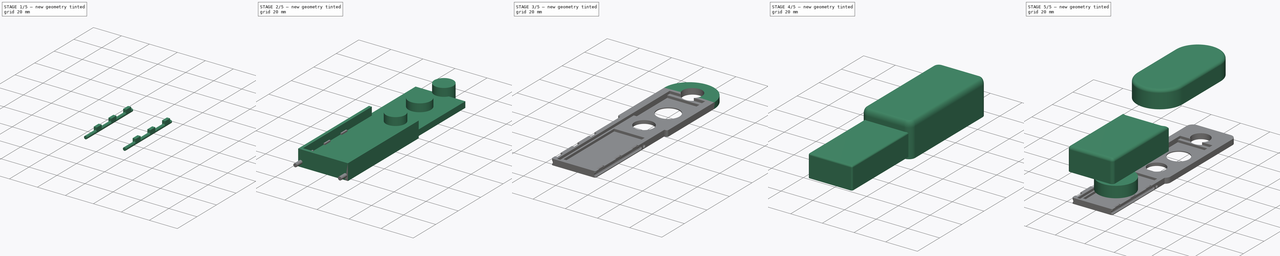
[diagram: build sequence overview — one tinted view per stage of 5, left to right]
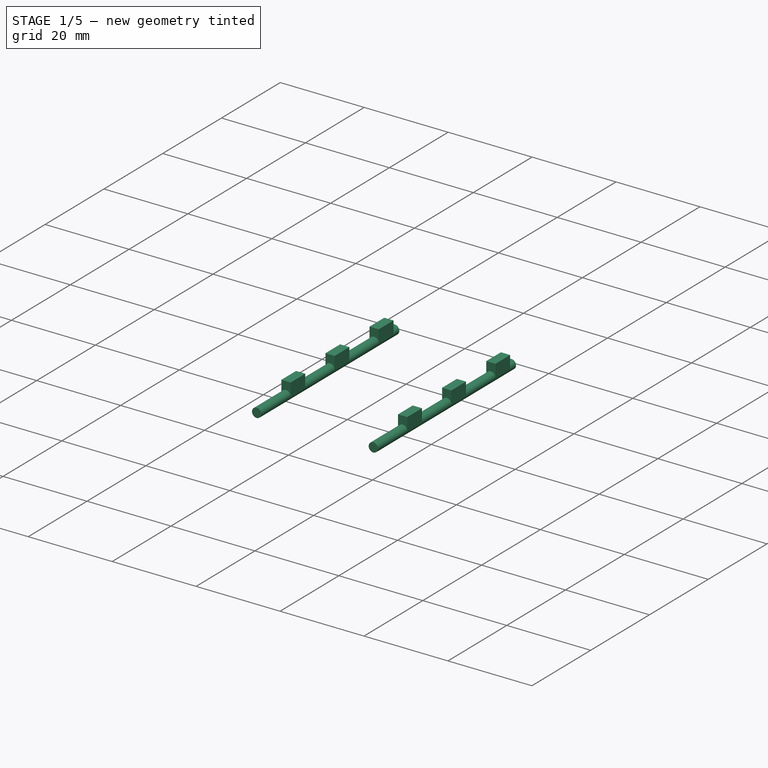
[diagram: stage 1 of 5 — iso view after this stage's code; geometry added in this stage tinted green]
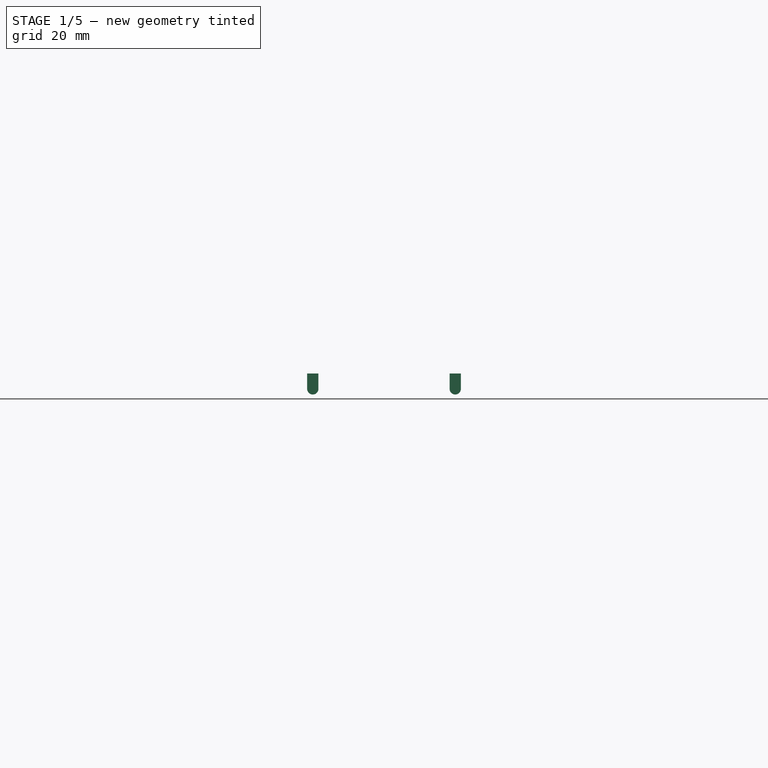
[diagram: stage 1 of 5 — front view after this stage's code; geometry added in this stage tinted green]
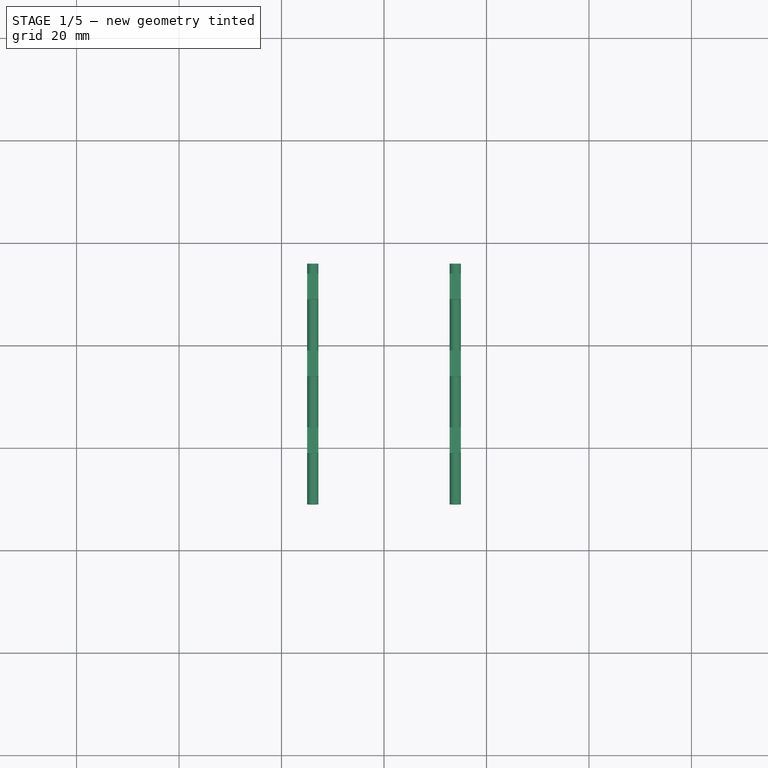
[diagram: stage 1 of 5 — top view after this stage's code; geometry added in this stage tinted green]
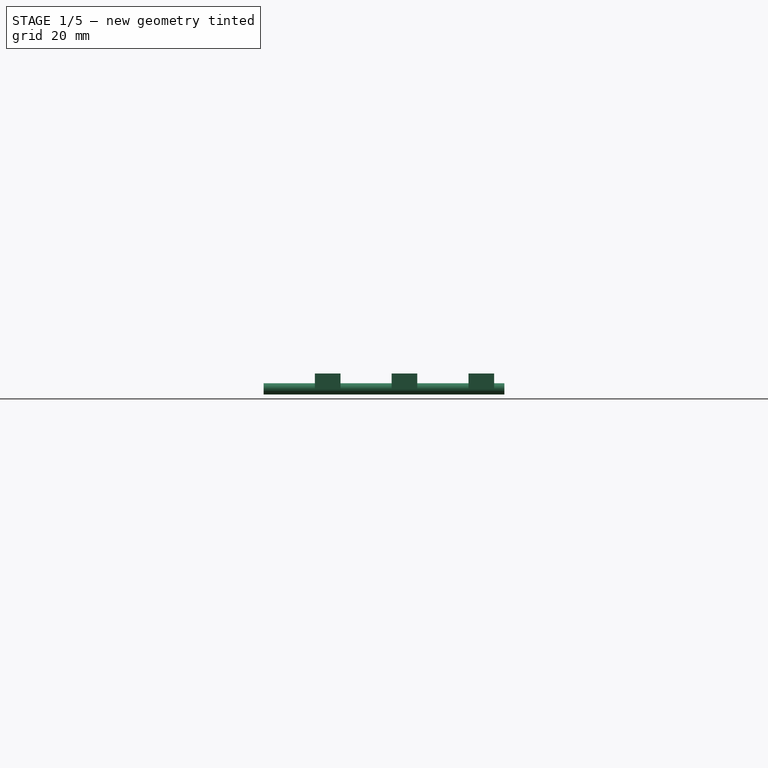
[diagram: stage 1 of 5 — right view after this stage's code; geometry added in this stage tinted green]
FCSTD DOCUMENT  (FreeCAD 0.18R4 (GitTag))
Label: RHS_3_small
License: All rights reserved
LicenseURL: http://en.wikipedia.org/wiki/All_rights_reserved
objects: Part::FeaturePython×11, Part::Box×10, Part::Cut×10, Part::Cylinder×7, Part::MultiFuse×7, Part::Fillet×7, Sketcher::SketchObject×2, Part::Sphere×2, Spreadsheet::Sheet×1, Part::Feature×1, Part::Extrusion×1, Part::Chamfer×1, PartDesign::Pad×1, PartDesign::Body×1
note: 62 computed .brp shape members not serialized (recipe doc carries the construction recipe); baked Part::Feature solids carry a one-line shape summary decoded from their .brp

FEATURE [Part::Box] Box001  label="DeckelBox"
  AttacherType = Attacher::AttachEngine3D
  Height = 15.7
  Length = 31
  Placement = pos=(-15.5,-86,-3.7) rot=(0,0,1;0rad)
  Width = 63
  expr: Placement.Base.z = -GrundPlatteRBase.Height
  expr: Height = GrundPlatteRBase.Height + 12mm
  expr: Placement.Base.x = -Length / 2
  expr: Length = Parameter.GriffR_Width
FEATURE [Part::Box] Box002  label="DeckeBoxCut"
  AttacherType = Attacher::AttachEngine3D
  Height = 14.1
  Length = 27.8
  Placement = pos=(-13.9,-84.4,-3.7) rot=(0,0,1;0rad)
  Width = 63
  expr: Placement.Base.z = DeckelBox.Placement.Base.z
  expr: Height = DeckelBox.Height - Parameter.Wall_Width
  expr: Placement.Base.y = DeckelBox.Placement.Base.y + Parameter.Wall_Width
  expr: Placement.Base.x = -Length / 2
  expr: Width = DeckelBox.Width
  expr: Length = DeckelBox.Length - Parameter.Wall_Width - Parameter.Wall_Width
FEATURE [Part::Box] Box003  label="GrundPlatteRBase"
  AttacherType = Attacher::AttachEngine3D
  Height = 3.7
  Length = 31
  Placement = pos=(-15.5,-86,-3.7) rot=(0,0,1;0rad)
  Width = 104.5
  expr: Placement.Base.x = -Length / 2
  expr: Length = Parameter.GriffR_Width
  expr: Height = Parameter.Pcb_Height + Parameter.Part_Height + 0.6mm
  expr: Placement.Base.z = -Height
FEATURE [Part::Sphere] Sphere  label="Fed0"
  Angle1 = -90
  Angle2 = 90
  Angle3 = 360
  AttacherType = Attacher::AttachEngine3D
  Placement = pos=(-13.9,-41,-2.1) rot=(0,0,1;0rad)
  Radius = 1
  expr: Placement.Base.z = DeckelBox.Placement.Base.z + Radius + 0.6mm
  expr: Placement.Base.y = -Parameter.GriffR_Height / 2 - 7mm
  expr: Placement.Base.x = DeckelBox.Placement.Base.x + Parameter.Wall_Width
FEATURE [Part::FeaturePython] Array002  label="FedAll"  # Draft array (typed FeaturePython)
  Angle = 360
  ArrayType = 0
  Axis = (0,0,1)
  Base = -> Sphere
  Center = (0,0,0)
  Fuse = false
  IntervalAxis = (0,0,0)
  IntervalX = (27.8,0,0)
  IntervalY = (0,-15,0)
  IntervalZ = (0,0,1)
  NumberPolar = 1
  NumberX = 2
  NumberY = 3
  NumberZ = 1
  expr: IntervalX.x = DeckeBoxCut.Length
FEATURE [Part::Sphere] Sphere001  label="Nut0"
  Angle1 = -90
  Angle2 = 90
  Angle3 = 360
  AttacherType = Attacher::AttachEngine3D
  Placement = pos=(-13.9,-41,-2.1) rot=(0,0,1;0rad)
  Radius = 1.1
  expr: Placement.Base.z = Fed0.Placement.Base.z
  expr: Placement.Base.y = Fed0.Placement.Base.y
  expr: Placement.Base.x = Fed0.Placement.Base.x
  expr: Radius = Fed0.Radius + 0.1mm
FEATURE [Part::FeaturePython] Array003  label="Nut01"  # Draft array (typed FeaturePython)
  Angle = 360
  ArrayType = 0
  Axis = (0,0,1)
  Base = -> Sphere001
  Center = (0,0,0)
  Fuse = false
  IntervalAxis = (0,0,0)
  IntervalX = (27.8,0,0)
  IntervalY = (0,-3,0)
  IntervalZ = (0,0,1)
  NumberPolar = 1
  NumberX = 2
  NumberY = 2
  NumberZ = 1
  expr: IntervalX.x = FedAll.IntervalX.x
FEATURE [Part::Cylinder] Cylinder006  label="Nut1"
  Angle = 360
  AttacherType = Attacher::AttachEngine3D
  Height = 47
  Placement = pos=(-13.9,-44,-2.1) rot=(1,0,0;1.5708rad)
  Radius = 1.1
  expr: Placement.Base.z = Nut0.Placement.Base.z
  expr: Placement.Base.y = Nut0.Placement.Base.y + Nut01.IntervalY.y
  expr: Placement.Base.x = Nut0.Placement.Base.x
  expr: Radius = Nut0.Radius
FEATURE [Part::FeaturePython] Array004  # Draft array (typed FeaturePython)
  Angle = 360
  ArrayType = 0
  Axis = (0,0,1)
  Base = -> Cylinder006
  Center = (0,0,0)
  Fuse = false
  IntervalAxis = (0,0,0)
  IntervalX = (27.8,0,0)
  IntervalY = (0,1,0)
  IntervalZ = (0,0,1)
  NumberPolar = 1
  NumberX = 2
  NumberY = 1
  NumberZ = 1
  expr: IntervalX.x = FedAll.IntervalX.x
FEATURE [Part::Box] Box007  label="NutIn"
  AttacherType = Attacher::AttachEngine3D
  Height = 3
  Length = 2.2
  Placement = pos=(-15,-51,-2.1) rot=(0,0,1;0rad)
  Width = 5
  expr: Placement.Base.z = Nut0.Placement.Base.z
  expr: Placement.Base.y = Nut0.Placement.Base.y - Width - 5mm
  expr: Placement.Base.x = Nut0.Placement.Base.x - Nut0.Radius
  expr: Length = Nut0.Radius * 2
FEATURE [Part::FeaturePython] Array005  # Draft array (typed FeaturePython)
  Angle = 360
  ArrayType = 0
  Axis = (0,0,1)
  Base = -> Box007
  Center = (0,0,0)
  Fuse = false
  IntervalAxis = (0,0,0)
  IntervalX = (27.8,0,0)
  IntervalY = (0,-15,0)
  IntervalZ = (0,0,1)
  NumberPolar = 1
  NumberX = 2
  NumberY = 3
  NumberZ = 1
  expr: IntervalY.y = FedAll.IntervalY.y
  expr: IntervalX.x = FedAll.IntervalX.x
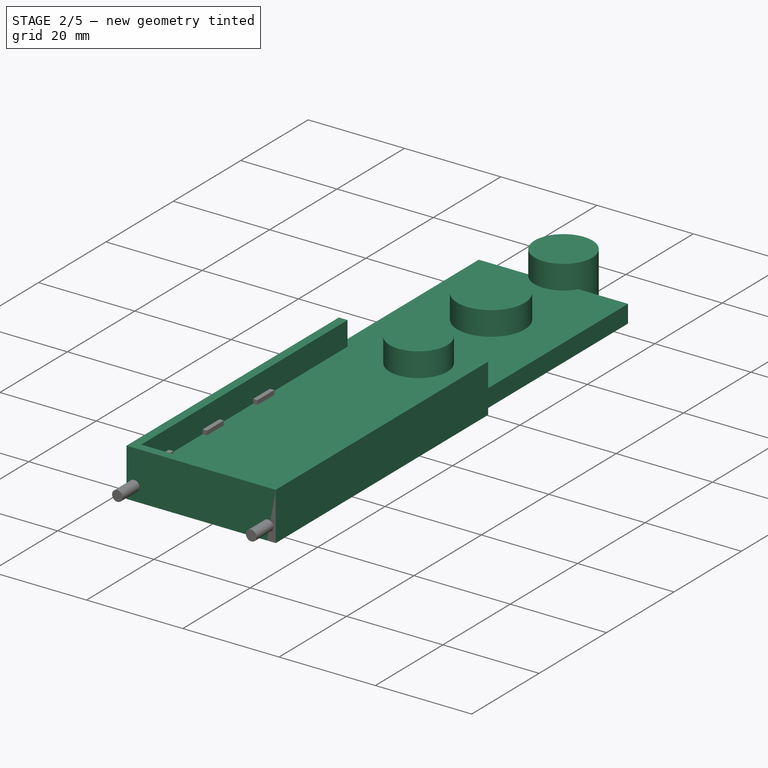
[diagram: stage 2 of 5 — iso view after this stage's code; geometry added in this stage tinted green]
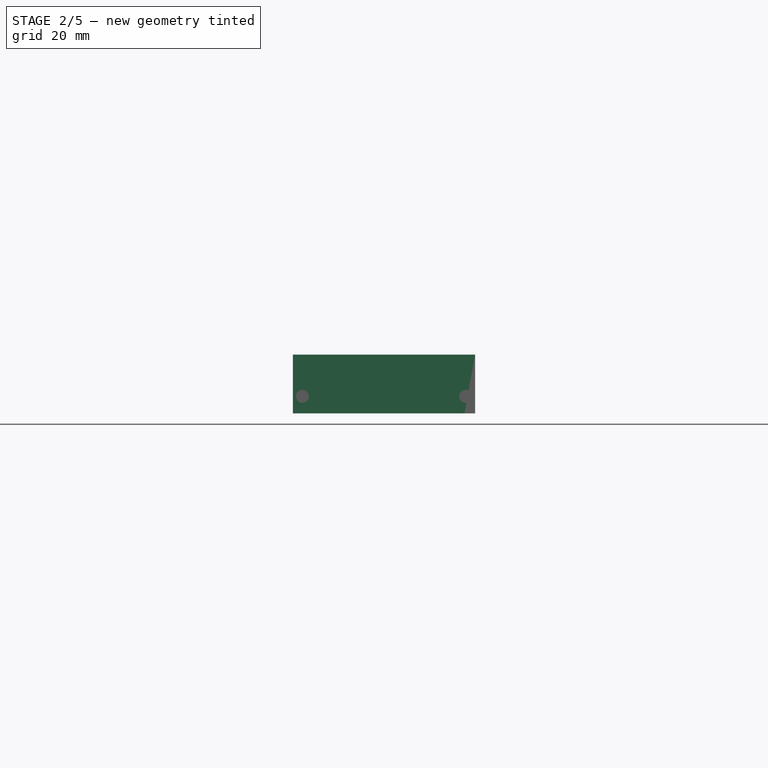
[diagram: stage 2 of 5 — front view after this stage's code; geometry added in this stage tinted green]
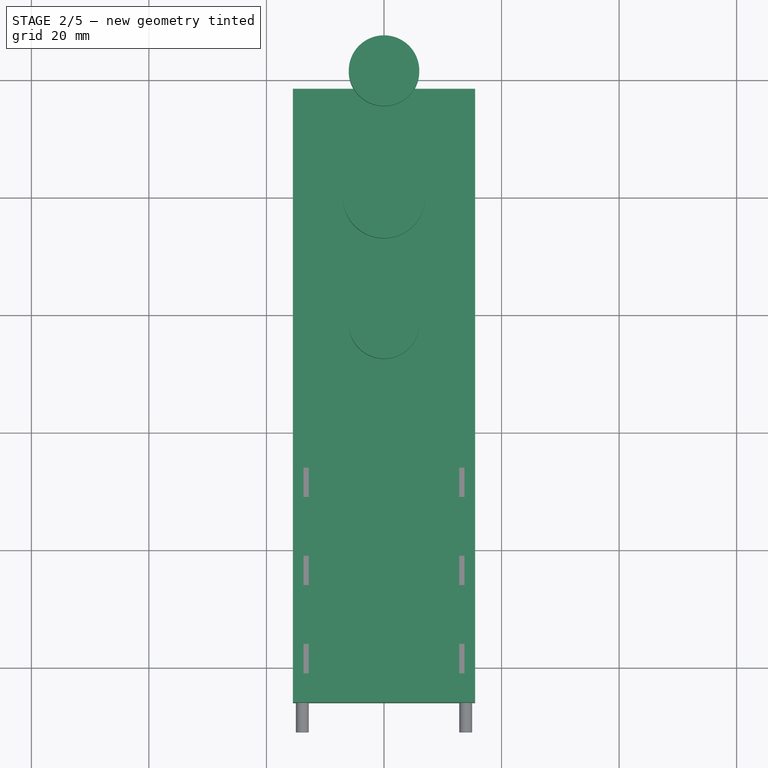
[diagram: stage 2 of 5 — top view after this stage's code; geometry added in this stage tinted green]
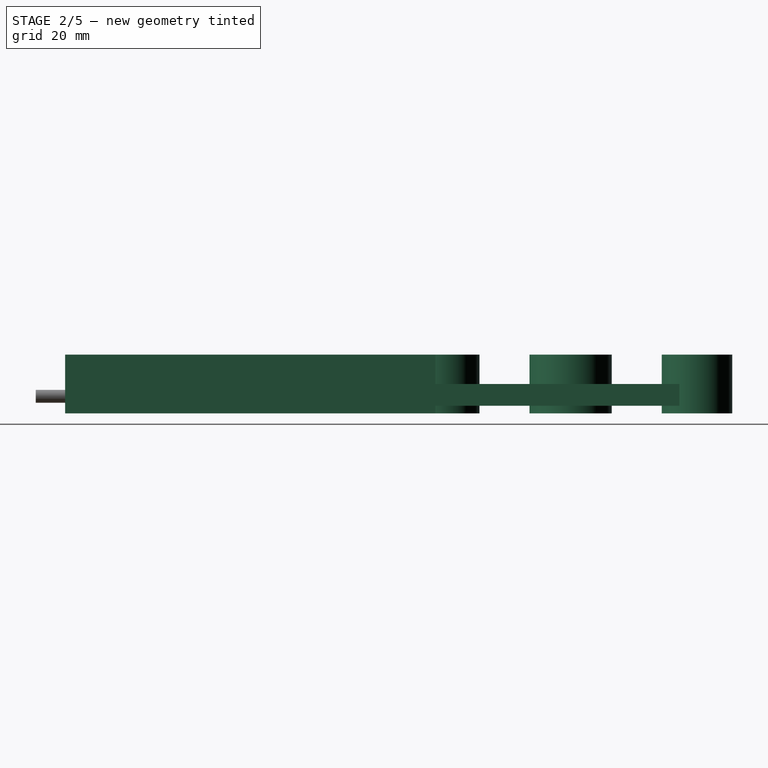
[diagram: stage 2 of 5 — right view after this stage's code; geometry added in this stage tinted green]
FEATURE [Part::Fillet] Fillet003
  Base = -> Box003
  Edges = 2 edges r=2: [Edge1,Edge5]
FEATURE [Part::Cylinder] Cylinder004  label="LochU"
  Angle = 360
  AttacherType = Attacher::AttachEngine3D
  Height = 10
  Placement = pos=(0,-21.5,-5) rot=(0,0,1;0rad)
  Radius = 6
  expr: Placement.Base.y = -21.5
  expr: Placement.Base.z = -5mm
FEATURE [Part::FeaturePython] Array  label="LochUO"  # Draft array (typed FeaturePython)
  Angle = 360
  ArrayType = 0
  Axis = (0,0,1)
  Base = -> Cylinder004
  Center = (0,0,0)
  Fuse = false
  IntervalAxis = (0,0,0)
  IntervalX = (1,0,0)
  IntervalY = (0,43,0)
  IntervalZ = (0,0,1)
  NumberPolar = 1
  NumberX = 1
  NumberY = 2
  NumberZ = 1
  expr: IntervalY.y = -LochU.Placement.Base.y * 2
FEATURE [Part::Cylinder] Cylinder005  label="LochM"
  Angle = 360
  AttacherType = Attacher::AttachEngine3D
  Height = 10
  Placement = pos=(0,0,-5) rot=(0,0,1;0rad)
  Radius = 7
  expr: Placement.Base.z = LochU.Placement.Base.z
FEATURE [Part::MultiFuse] Fusion002  label="LochAll"
  Shapes = -> [Array,Cylinder005]
FEATURE [Part::Box] Box004  label="PcbCut"
  AttacherType = Attacher::AttachEngine3D
  Height = 1.6
  Length = 22
  Placement = pos=(-11,-83,-1.6) rot=(0,0,1;0rad)
  Width = 100
  expr: Placement.Base.x = -Length / 2
  expr: Placement.Base.z = -Height
  expr: Height = Parameter.Pcb_Height
FEATURE [Sketcher::SketchObject] Sketch
  Placement = pos=(0,0,-1.6) rot=(0,0,1;0rad)
  expr: Placement.Base.z = -Parameter.Pcb_Height
  sketch-geometry (8):
    g0: LineSegment StartX=-11 StartY=-14.885 StartZ=0 EndX=11 EndY=-14.885 EndZ=0
    g1: LineSegment StartX=11 StartY=-14.885 StartZ=0 EndX=11 EndY=14.7566 EndZ=0
    g2: LineSegment StartX=11 StartY=14.7566 StartZ=0 EndX=-11 EndY=14.7566 EndZ=0
    g3: LineSegment StartX=-11 StartY=14.7566 StartZ=0 EndX=-11 EndY=-14.885 EndZ=0
    g4: LineSegment StartX=-9.97808 StartY=-78.7447 StartZ=0 EndX=10.1094 EndY=-78.7447 EndZ=0
    g5: LineSegment StartX=10.1094 StartY=-78.7447 StartZ=0 EndX=10.1094 EndY=-33.8126 EndZ=0
    g6: LineSegment StartX=10.1094 StartY=-33.8126 StartZ=0 EndX=-9.97808 EndY=-33.8126 EndZ=0
    g7: LineSegment StartX=-9.97808 StartY=-33.8126 StartZ=0 EndX=-9.97808 EndY=-78.7447 EndZ=0
  constraints (18):
    c: Coincident(g0,g1)
    c: Coincident(g1,g2)
    c: Coincident(g2,g3)
    c: Coincident(g3,g0)
    c: Horizontal(g0)
    c: Horizontal(g2)
    c: Vertical(g1)
    c: Vertical(g3)
    c: Coincident(g4,g5)
    c: Coincident(g5,g6)
    c: Coincident(g6,g7)
    c: Coincident(g7,g4)
    c: Horizontal(g4)
    c: Horizontal(g6)
    c: Vertical(g5)
    c: Vertical(g7)
    c: Distance(g-1,g3) = 11
    c: Distance(g-1,g1) = 11
FEATURE [Part::Extrusion] Extrude  label="PartsSpace"
  Base = -> Sketch
  Dir = (0,0,1)
  DirMode = 2
  FaceMakerClass = Part::FaceMakerBullseye
  LengthFwd = 1.5
  LengthRev = 0
  Placement = pos=(0,0,-1.5) rot=(0,0,1;0rad)
  Solid = true
  Symmetric = false
  expr: Placement.Base.z = -LengthFwd
  expr: LengthFwd = Parameter.Part_Height
FEATURE [Part::Box] Box005  label="DRCut"
  AttacherType = Attacher::AttachEngine3D
  Height = 10
  Length = 1.8
  Placement = pos=(-15.5,-86,-5) rot=(0,0,1;0rad)
  Width = 63
  expr: Placement.Base.z = -5mm
  expr: Placement.Base.y = DeckelBox.Placement.Base.y
  expr: Placement.Base.x = DeckelBox.Placement.Base.x
  expr: Width = DeckelBox.Width
  expr: Length = Parameter.Wall_Width + 0.2mm
FEATURE [Part::FeaturePython] Array001  # Draft array (typed FeaturePython)
  Angle = 360
  ArrayType = 0
  Axis = (0,0,1)
  Base = -> Box005
  Center = (0,0,0)
  Fuse = false
  IntervalAxis = (0,0,0)
  IntervalX = (29.2,0,0)
  IntervalY = (0,1,0)
  IntervalZ = (0,0,1)
  NumberPolar = 1
  NumberX = 2
  NumberY = 1
  NumberZ = 1
  expr: IntervalX.x = DeckelBox.Length - DRCut.Length
FEATURE [Part::Box] Box006  label="DRCut2"
  AttacherType = Attacher::AttachEngine3D
  Height = 10
  Length = 31
  Placement = pos=(-15.5,-86,-5) rot=(0,0,1;0rad)
  Width = 1.8
  expr: Placement.Base.z = DRCut.Placement.Base.z
  expr: Placement.Base.y = DeckelBox.Placement.Base.y
  expr: Placement.Base.x = DeckelBox.Placement.Base.x
  expr: Width = DRCut.Length
  expr: Length = DeckelBox.Length
FEATURE [Part::MultiFuse] Fusion003  label="DRCutAll"
  Shapes = -> [Array001,Box006]
FEATURE [Part::MultiFuse] Fusion005  label="NutAll"
  Shapes = -> [Array003,Array004,Array005]
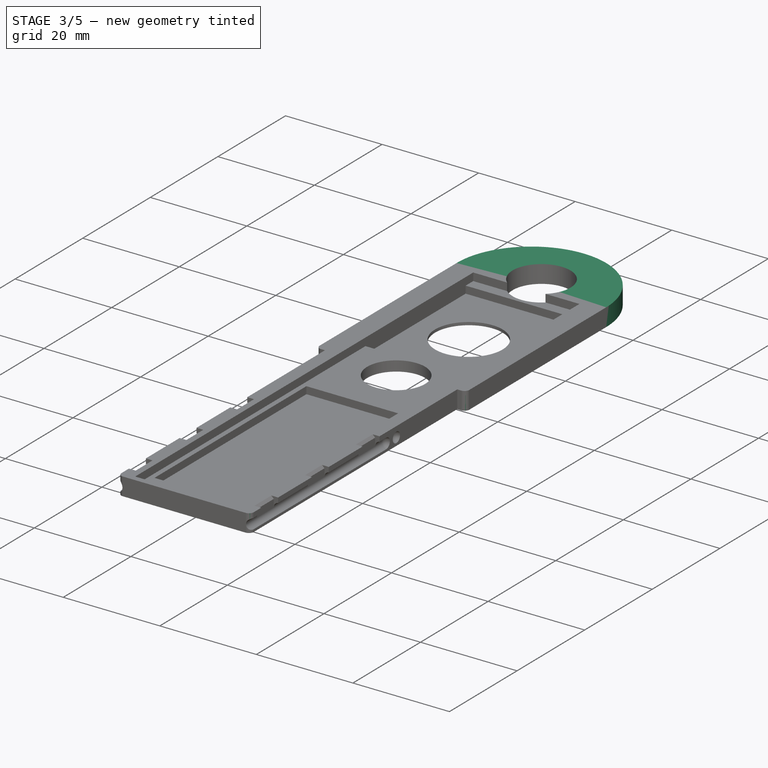
[diagram: stage 3 of 5 — iso view after this stage's code; geometry added in this stage tinted green]
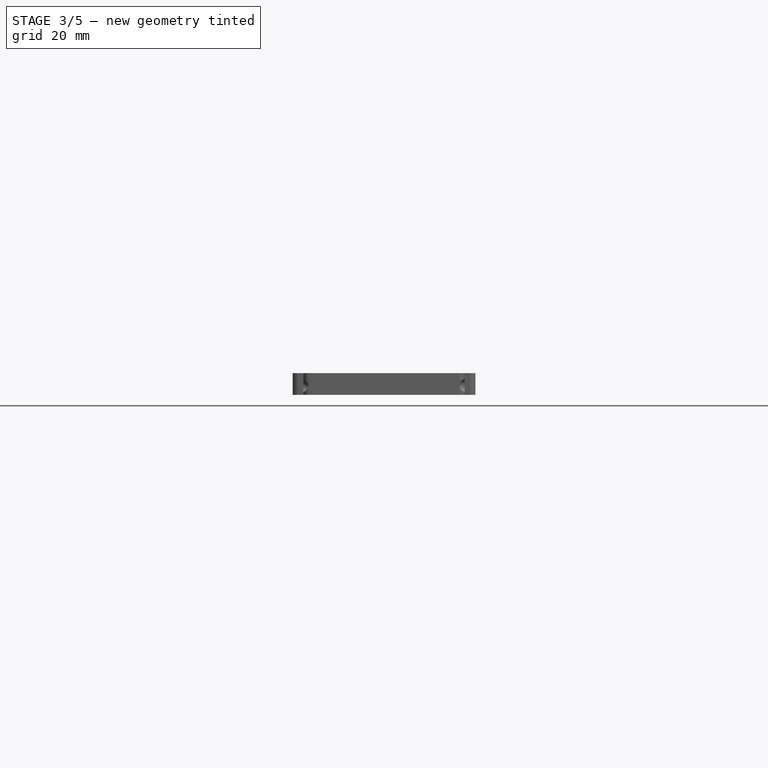
[diagram: stage 3 of 5 — front view after this stage's code; geometry added in this stage tinted green]
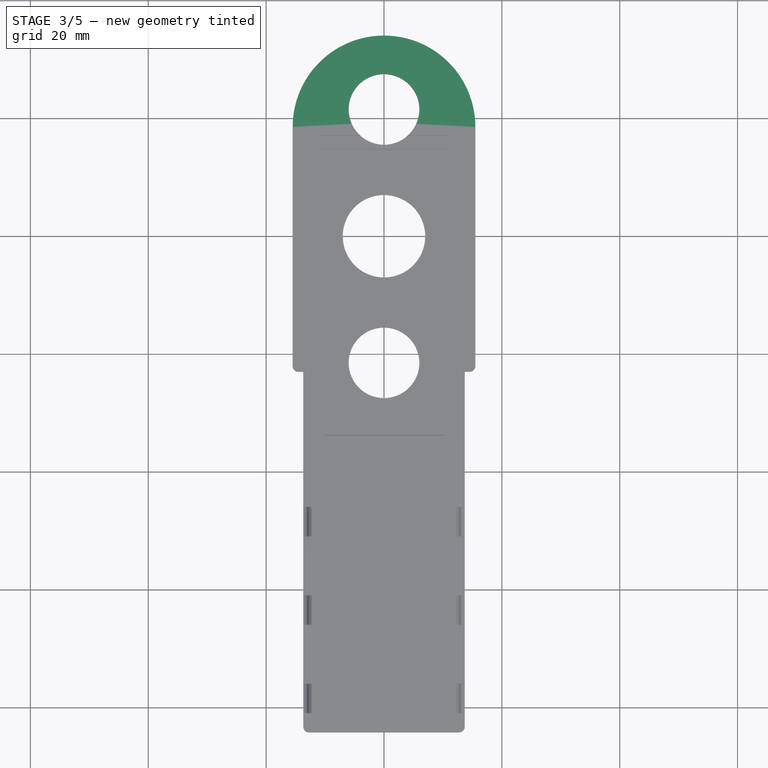
[diagram: stage 3 of 5 — top view after this stage's code; geometry added in this stage tinted green]
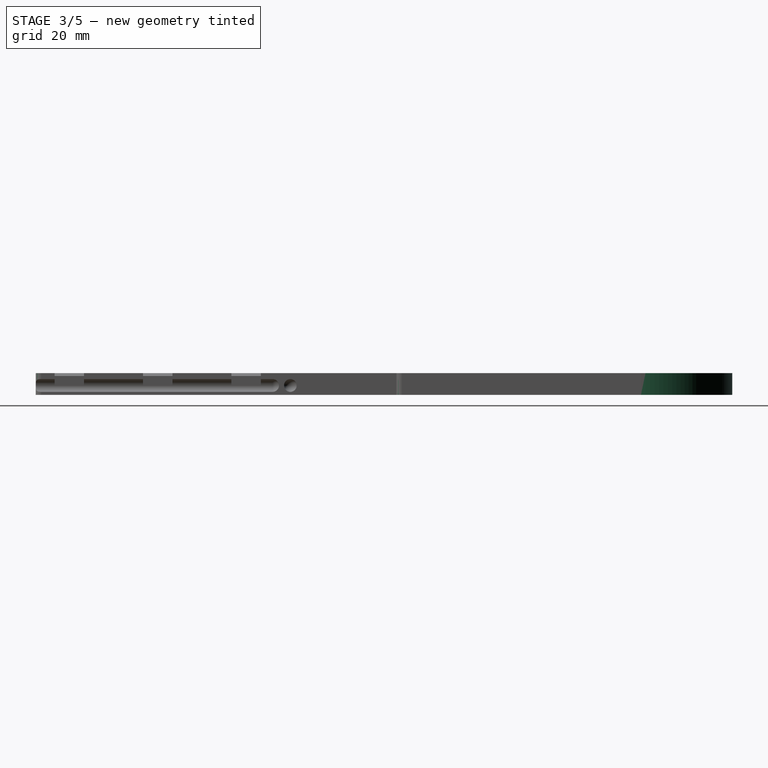
[diagram: stage 3 of 5 — right view after this stage's code; geometry added in this stage tinted green]
FEATURE [Part::Cylinder] Cylinder003  label="Cylinder"
  Angle = 180
  AttacherType = Attacher::AttachEngine3D
  Height = 3.7
  Placement = pos=(0,18.5,-3.7) rot=(0,0,1;0rad)
  Radius = 15.5
  expr: Placement.Base.y = Parameter.GriffR_Height / 2 - Radius
  expr: Height = GrundPlatteRBase.Height
  expr: Placement.Base.z = -Height
  expr: Radius = Parameter.GriffR_Width / 2
FEATURE [Part::MultiFuse] Fusion001  label="GrundPlatteR"
  Shapes = -> [Cylinder003,Fillet003]
FEATURE [Part::Cut] Cut002
  Base = -> Fusion001
  Tool = -> Fusion002
FEATURE [Part::Cut] Cut003
  Base = -> Cut002
  Tool = -> Box004
FEATURE [Part::Cut] Cut004
  Base = -> Cut003
  Tool = -> Extrude
FEATURE [Part::Cut] Cut005
  Base = -> Cut004
  Tool = -> Fusion003
FEATURE [Part::Fillet] Fillet004
  Base = -> Cut005
  Edges = 2 edges r=1: [Edge11,Edge18]
FEATURE [Part::Fillet] Fillet005
  Base = -> Fillet004
  Edges = 2 edges r=1: [Edge48,Edge51]
FEATURE [Part::Cut] Cut006
  Base = -> Fillet005
  Tool = -> Fusion005
FEATURE [Part::Chamfer] Chamfer  label="BodenR"
  Base = -> Cut006
  Edges = 6 edges r=0.5: [Edge3,Edge7,Edge11,Edge31,Edge35,Edge39]
FEATURE [Part::FeaturePython] Clone005  label="BodenRClone"  # Draft clone (typed FeaturePython)
  AttacherType = Attacher::AttachEngine3D
  Fuse = false
  Objects = -> [Chamfer]
  Scale = (1,1,1)
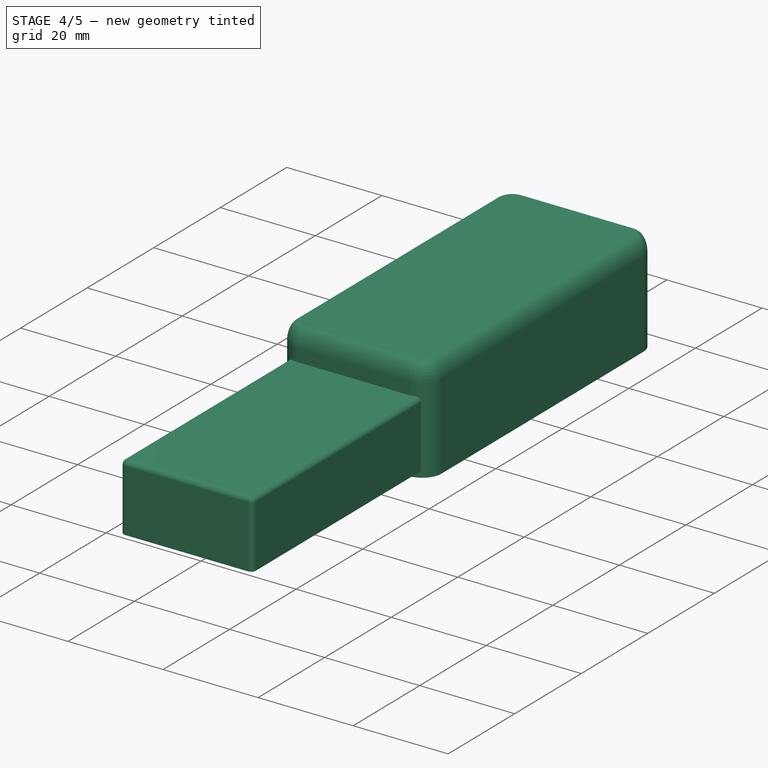
[diagram: stage 4 of 5 — iso view after this stage's code; geometry added in this stage tinted green]
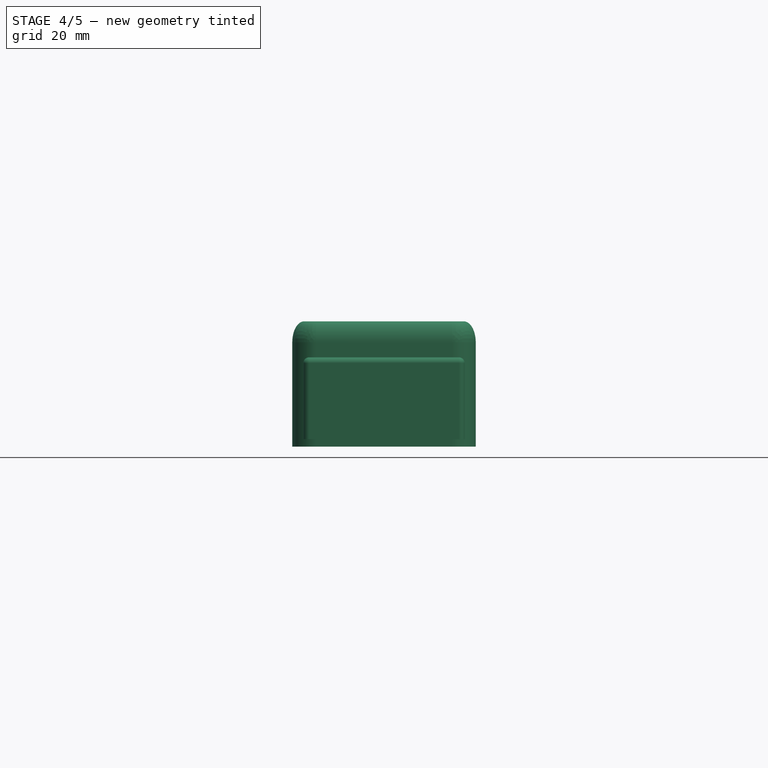
[diagram: stage 4 of 5 — front view after this stage's code; geometry added in this stage tinted green]
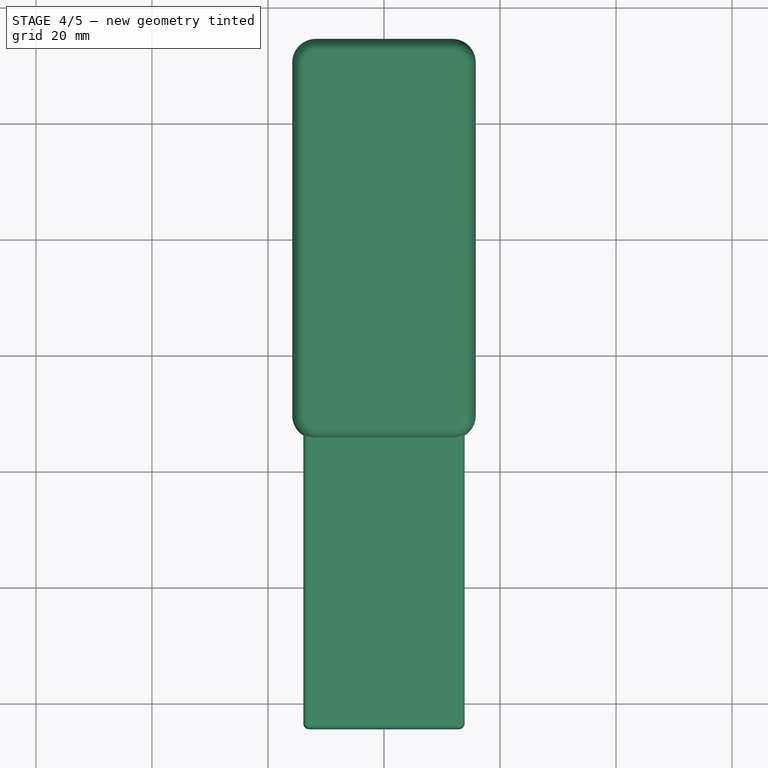
[diagram: stage 4 of 5 — top view after this stage's code; geometry added in this stage tinted green]
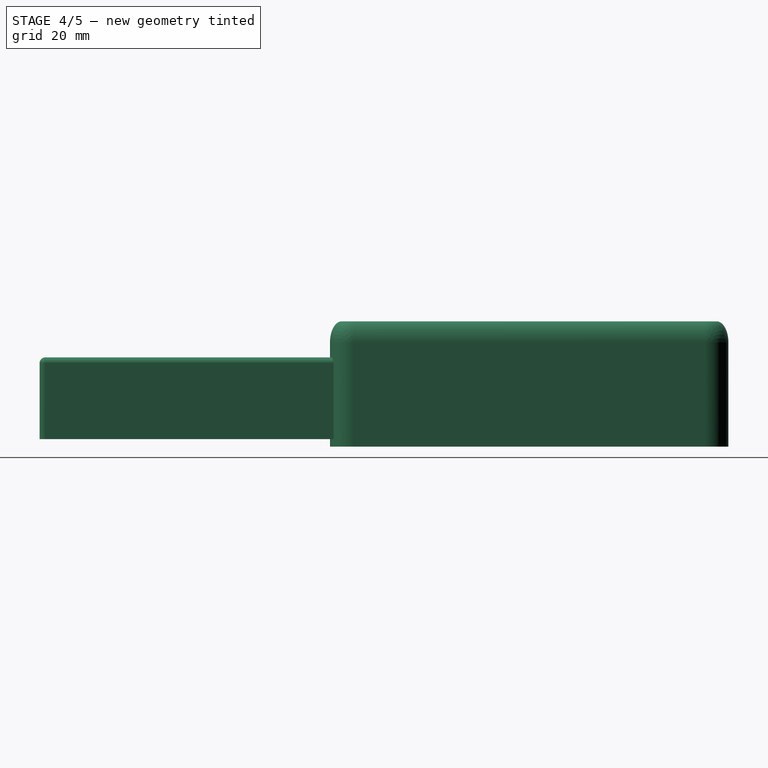
[diagram: stage 4 of 5 — right view after this stage's code; geometry added in this stage tinted green]
FEATURE [Spreadsheet::Sheet] Spreadsheet  label="Parameter"
  cells = A3=Griff Rund; A4=Höhe; B4(GriffR_Height)==68mm; A5=Breite; B5(GriffR_Width)==31mm; A6=Ecke Radius; B6(GriffR_Radius)==4mm; A8=Platine; A9=Dicke; B9(Pcb_Height)==1.6mm; A10=Bauteilhöhe; B10(Part_Height)==1.5mm; A15=Deckel; A16=Wandstärke; B16(Wall_Width)==1.6mm
FEATURE [Part::Box] Box  label="GrBox"
  AttacherType = Attacher::AttachEngine3D
  Height = 12
  Length = 31
  Placement = pos=(-15.5,-18.5,0) rot=(0,0,1;0rad)
  Width = 37
  expr: Placement.Base.y = -Width / 2
  expr: Placement.Base.x = -Length / 2
  expr: Width = Parameter.GriffR_Height - Parameter.GriffR_Width
  expr: Length = Parameter.GriffR_Width
FEATURE [Part::Cylinder] Cylinder  label="GrRund"
  Angle = 180
  AttacherType = Attacher::AttachEngine3D
  Height = 12
  Placement = pos=(0,18.5,0) rot=(0,0,1;0rad)
  Radius = 15.5
  expr: Height = GrBox.Height
  expr: Placement.Base.y = Parameter.GriffR_Height / 2 - Radius
  expr: Radius = Parameter.GriffR_Width / 2
FEATURE [Part::Fillet] Fillet002
  Base = -> Box002
  Edges = 5 edges r=1: [Edge1,Edge2,Edge5,Edge6,Edge10]
FEATURE [Sketcher::SketchObject] Sketch001
  MapMode = 5
  Support = -> [XY_Plane]
  expr: Constraints[26] = Parameter.GriffR_Width / 2
  expr: Constraints[25] = Parameter.GriffR_Height / 2
  expr: Constraints[24] = Parameter.GriffR_Height / 2
  expr: Constraints[19] = Parameter.GriffR_Radius
  expr: Constraints[27] = Parameter.GriffR_Width / 2
  expr: Constraints[17] = Parameter.GriffR_Radius
  expr: Constraints[15] = Parameter.GriffR_Radius
  expr: Constraints[12] = Parameter.GriffR_Radius
  sketch-geometry (8):
    g0: LineSegment StartX=-11.5 StartY=34 StartZ=0 EndX=11.5 EndY=34 EndZ=0
    g1: LineSegment StartX=15.5 StartY=30 StartZ=0 EndX=15.5 EndY=-30 EndZ=0
    g2: LineSegment StartX=11.5 StartY=-34 StartZ=0 EndX=-11.5 EndY=-34 EndZ=0
    g3: LineSegment StartX=-15.5 StartY=-30 StartZ=0 EndX=-15.5 EndY=30 EndZ=0
    g4: ArcOfCircle CenterX=-11.5 CenterY=30 CenterZ=0 NormalX=0 NormalY=0 NormalZ=1 AngleXU=0 Radius=4 StartAngle=1.5708 EndAngle=3.14159
    g5: ArcOfCircle CenterX=11.5 CenterY=30 CenterZ=0 NormalX=0 NormalY=0 NormalZ=1 AngleXU=0 Radius=4 StartAngle=0 EndAngle=1.5708
    g6: ArcOfCircle CenterX=11.5 CenterY=-30 CenterZ=0 NormalX=0 NormalY=0 NormalZ=1 AngleXU=0 Radius=4 StartAngle=4.71239 EndAngle=6.28319
    g7: ArcOfCircle CenterX=-11.5 CenterY=-30 CenterZ=0 NormalX=0 NormalY=0 NormalZ=1 AngleXU=0 Radius=4 StartAngle=3.14159 EndAngle=4.71239
  constraints (28):
    c: Horizontal(g0)
    c: Vertical(g1)
    c: Horizontal(g2)
    c: Vertical(g3)
    c: Coincident(g4,g3)
    c: Coincident(g4,g0)
    c: Coincident(g5,g0)
    c: Coincident(g5,g1)
    c: Coincident(g6,g1)
    c: Coincident(g6,g2)
    c: Coincident(g7,g2)
    c: Coincident(g7,g3)
    c: Radius(g4) = 4
    c: Angle(g4) = 1.5708
    c: Angle(g5) = 1.5708
    c: Radius(g5) = 4
    c: Angle(g7) = 1.5708
    c: Radius(g7) = 4
    c: Angle(g6) = 1.5708
    c: Radius(g6) = 4
    c: Horizontal(g5,g1)
    c: Horizontal(g4,g3)
    c: Horizontal(g3,g7)
    c: Horizontal(g6,g1)
    c: Distance(g-1,g0) = 34
    c: Distance(g-1,g2) = 34
    c: Distance(g-1,g1) = 15.5
    c: Distance(g-1,g3) = 15.5
FEATURE [PartDesign::Pad] Pad  label="GriffNBase"
  Length = 12
  Length2 = 100
  Profile = -> Sketch001
  Type = 0
FEATURE [Part::Fillet] Fillet006  label="GriffEckig"
  Base = -> Pad
  Edges = 1 edges r=2: [Edge22]
  Placement = pos=(0,0,40) rot=(0,0,1;0rad)
FEATURE [Part::FeaturePython] Clone003  label="GriffNCloneForCut"  # Draft clone (typed FeaturePython)
  AttacherType = Attacher::AttachEngine3D
  Fuse = false
  Objects = -> [Fillet006]
  Placement = pos=(0,0,-5) rot=(0,0,1;0rad)
  Scale = (1.02,1.01,1.8)
FEATURE [Part::FeaturePython] Clone004  label="GriffNCloneForBase"  # Draft clone (typed FeaturePython)
  AttacherType = Attacher::AttachEngine3D
  Fuse = false
  Objects = -> [Fillet006]
  Placement = pos=(0,0,-3.7) rot=(0,0,1;0rad)
  Scale = (1,1,1)
  expr: Placement.Base.z = GrundPlatteRBase.Placement.Base.z
FEATURE [Part::Box] Box008  label="ForBaseCut"
  AttacherType = Attacher::AttachEngine3D
  Height = 10
  Length = 31
  Placement = pos=(-15.5,-34,0) rot=(0,0,1;0rad)
  Width = 68
  expr: Placement.Base.y = -Width / 2
  expr: Placement.Base.x = -Length / 2
  expr: Width = Parameter.GriffR_Height
  expr: Length = Parameter.GriffR_Width
FEATURE [Part::Cut] Cut008
  Base = -> Clone004
  Tool = -> Box008
FEATURE [Part::Box] Box009  label="Cube"
  AttacherType = Attacher::AttachEngine3D
  Height = 10
  Length = 22
  Placement = pos=(-11,-40.5,-3.7) rot=(0,0,1;0rad)
  Width = 68
  expr: Width = Parameter.GriffR_Height
  expr: Placement.Base.z = GrundPlatteRBase.Placement.Base.z
  expr: Placement.Base.y = -Width + LochUO.IntervalY.y / 2 + LochU.Radius
  expr: Placement.Base.x = -Length / 2
  expr: Length = PcbCut.Length
FEATURE [Part::Cut] Cut009  label="BodenAddEckig"
  Base = -> Cut008
  Tool = -> Box009
FEATURE [Part::MultiFuse] Fusion006  label="BodenEckig"
  Shapes = -> [Cut009,Clone005]
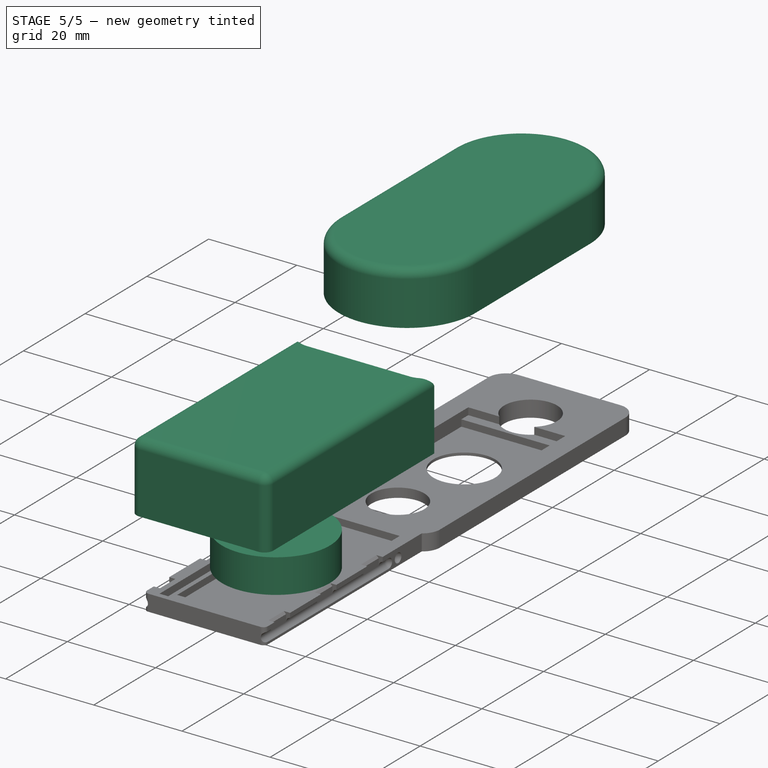
[diagram: stage 5 of 5 — iso view after this stage's code; geometry added in this stage tinted green]
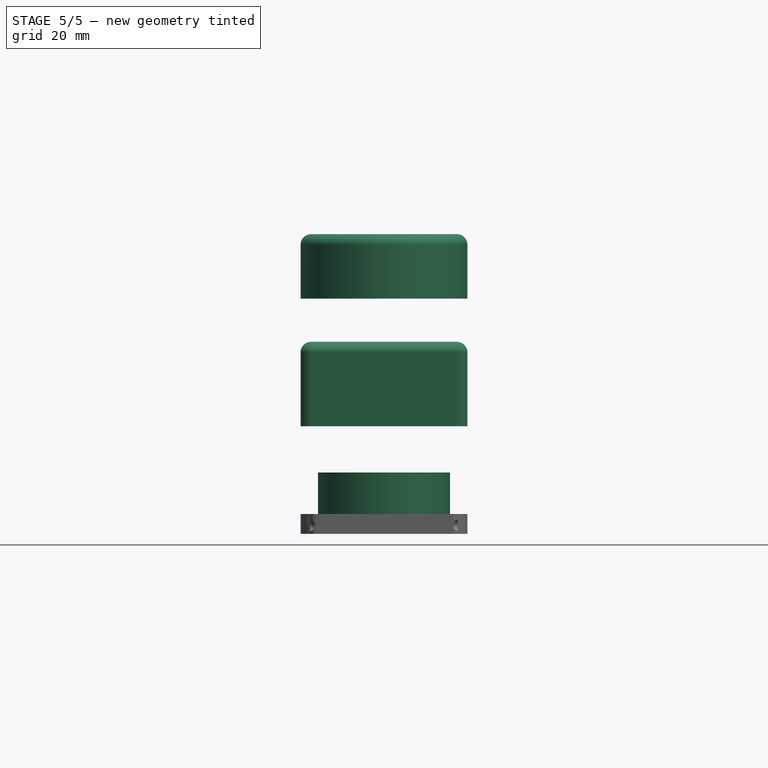
[diagram: stage 5 of 5 — front view after this stage's code; geometry added in this stage tinted green]
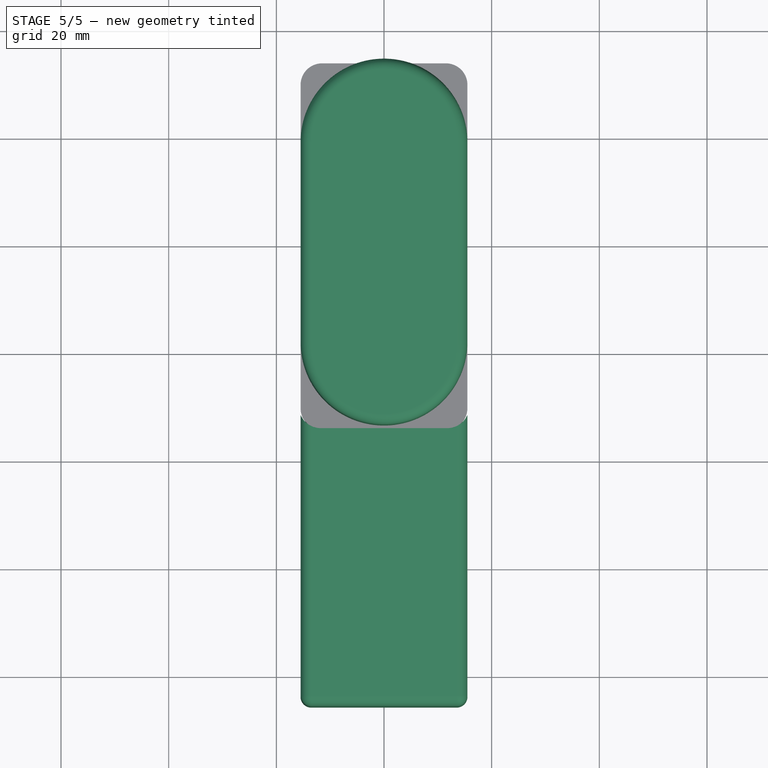
[diagram: stage 5 of 5 — top view after this stage's code; geometry added in this stage tinted green]
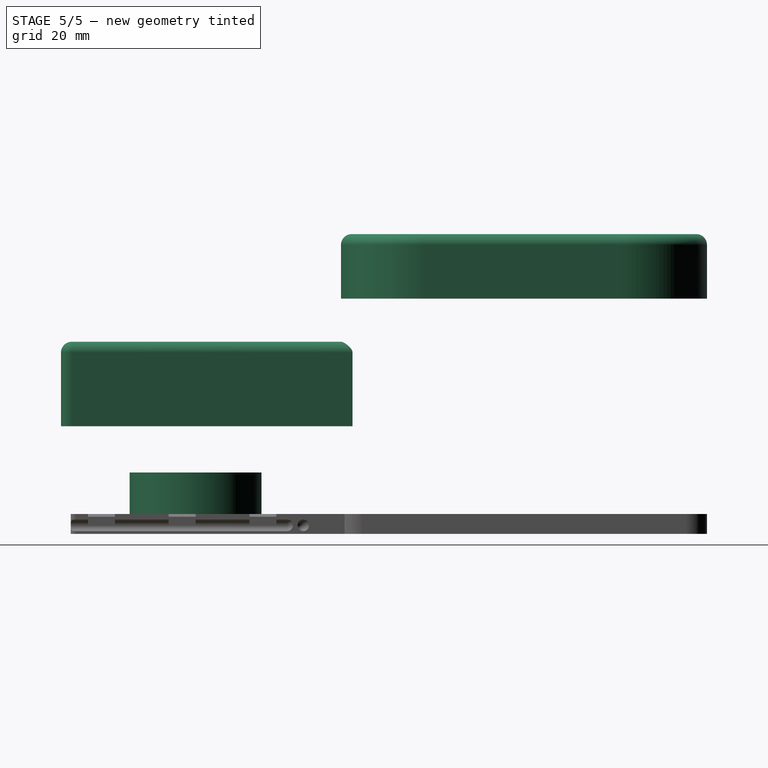
[diagram: stage 5 of 5 — right view after this stage's code; geometry added in this stage tinted green]
FEATURE [Part::Cylinder] Cylinder001  label="GrRund2"
  Angle = 180
  AttacherType = Attacher::AttachEngine3D
  Height = 12
  Placement = pos=(0,-18.5,0) rot=(0,0,1;3.14159rad)
  Radius = 15.5
  expr: Height = GrBox.Height
  expr: Placement.Base.y = -GrRund.Placement.Base.y
  expr: Radius = GrRund.Radius
FEATURE [Part::MultiFuse] Fusion  label="GriffRBase"
  Shapes = -> [Box,Cylinder,Cylinder001]
FEATURE [Part::Fillet] Fillet  label="GriffR"
  Base = -> Fusion
  Edges = 1 edges r=2: [Edge2]
  Placement = pos=(0,0,40) rot=(0,0,1;0rad)
FEATURE [Part::Feature] RHS_3_Simple_cp_cp  label="Platine"
  Placement = pos=(-100,100,0) rot=(0,0,1;0rad)
  shape: bbox 23.6 x 99.5 x 11.92 mm, 3324 faces, 34 solids (baked)
FEATURE [Part::Cylinder] Cylinder002  label="CR2477"
  Angle = 360
  AttacherType = Attacher::AttachEngine3D
  Height = 7.7
  Placement = pos=(0,-61,0) rot=(0,0,1;0rad)
  Radius = 12.25
FEATURE [Part::Fillet] Fillet001
  Base = -> Box001
  Edges = 8 edges r=2: [Edge1,Edge2,Edge3,Edge5,Edge6,Edge7,Edge10,Edge12]
FEATURE [Part::FeaturePython] Clone  label="GriffRBaseForCut"  # Draft clone (typed FeaturePython)
  AttacherType = Attacher::AttachEngine3D
  Fuse = false
  Objects = -> [Fusion]
  Placement = pos=(0,0,-5) rot=(0,0,1;0rad)
  Scale = (1.02,1.01,1.8)
FEATURE [Part::Cut] Cut
  Base = -> Fillet001
  Tool = -> Clone
FEATURE [Part::Cut] Cut001  label="DeckelR1"
  Base = -> Cut
  Tool = -> Fillet002
FEATURE [Part::MultiFuse] Fusion004  label="DeckelR"
  Placement = pos=(0,0,20) rot=(0,0,1;0rad)
  Shapes = -> [Cut001,Array002]
FEATURE [PartDesign::Body] Body
  Group = -> [Sketch001,Pad]
  Origin = -> Origin
  Tip = -> Pad
FEATURE [Part::FeaturePython] Clone002  label="DeckelRClone"  # Draft clone (typed FeaturePython)
  AttacherType = Attacher::AttachEngine3D
  Fuse = false
  Objects = -> [Fusion004]
  Scale = (1,1,1)
FEATURE [Part::Cut] Cut007  label="DeckelEckig"
  Base = -> Clone002
  Placement = pos=(0,0,20) rot=(0,0,1;0rad)
  Tool = -> Clone003
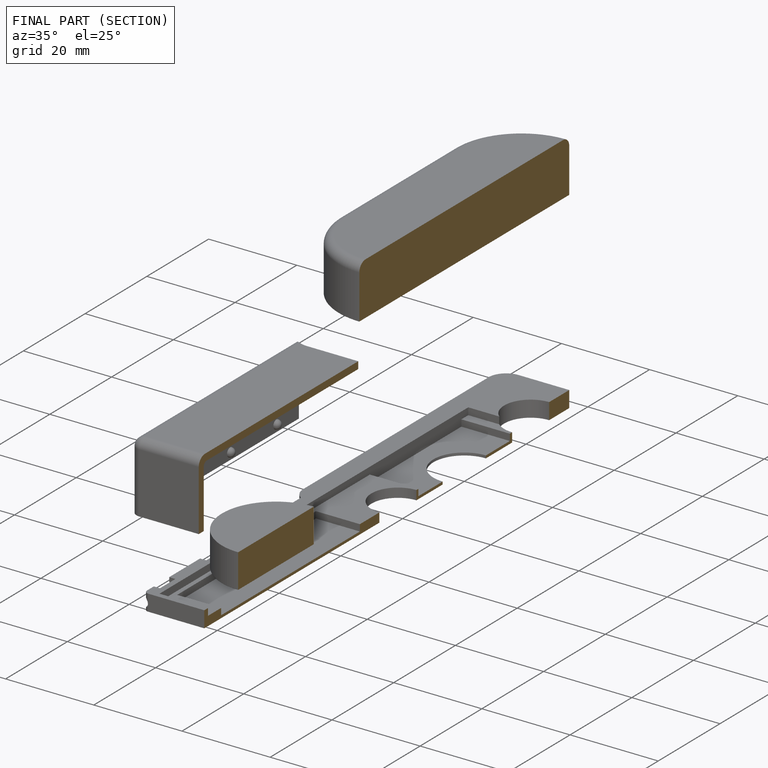
[diagram: finished part — half-section view (interior)]
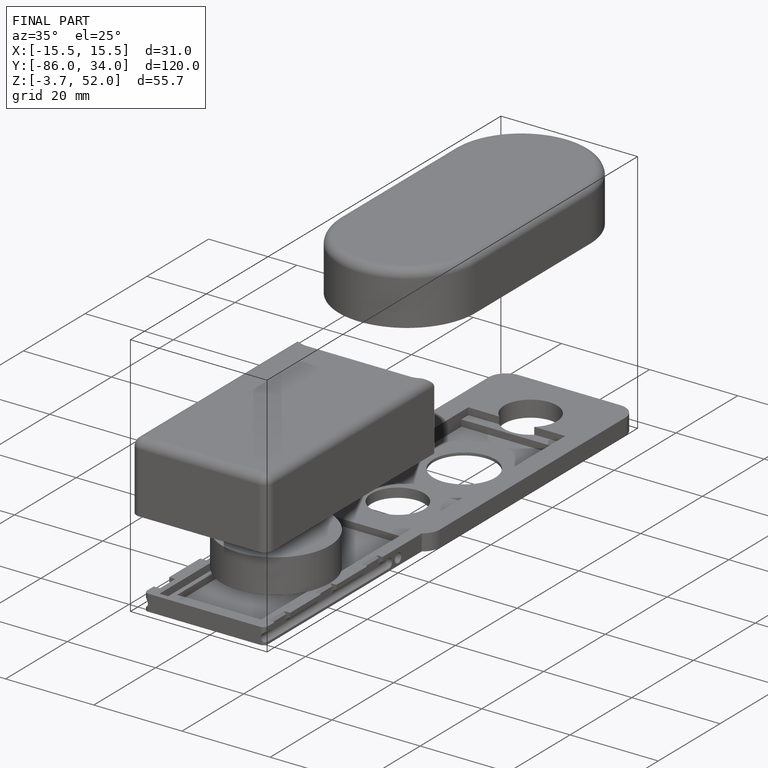
[diagram: finished part — iso view with bounding-box wireframe]
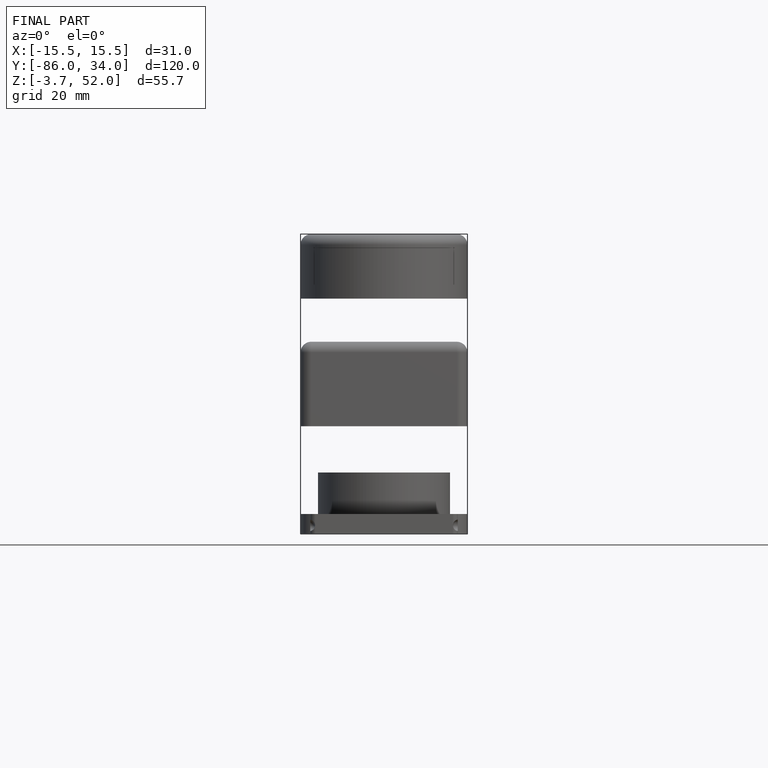
[diagram: finished part — front view with bounding-box wireframe]
